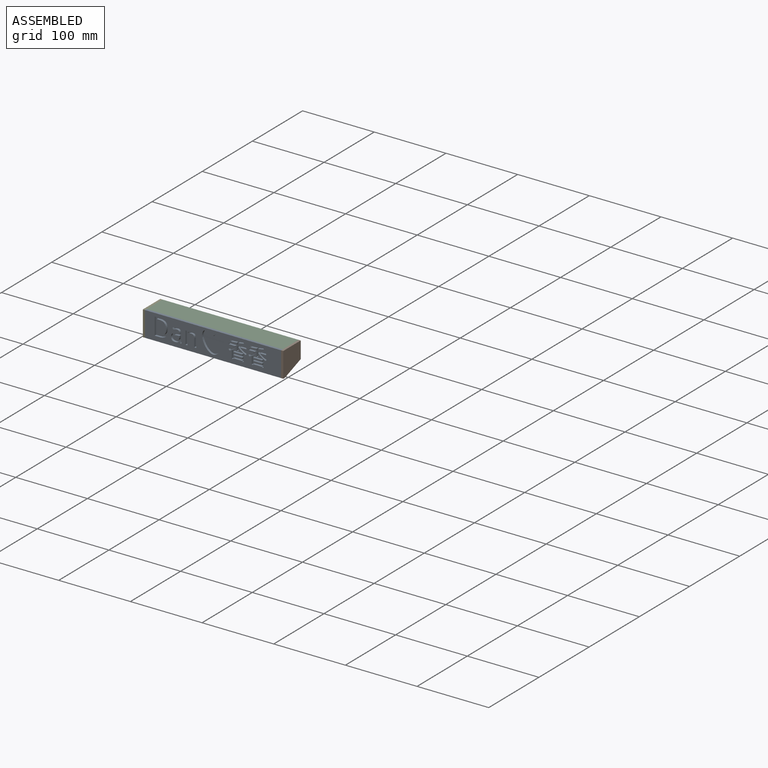
[diagram: assembled view]
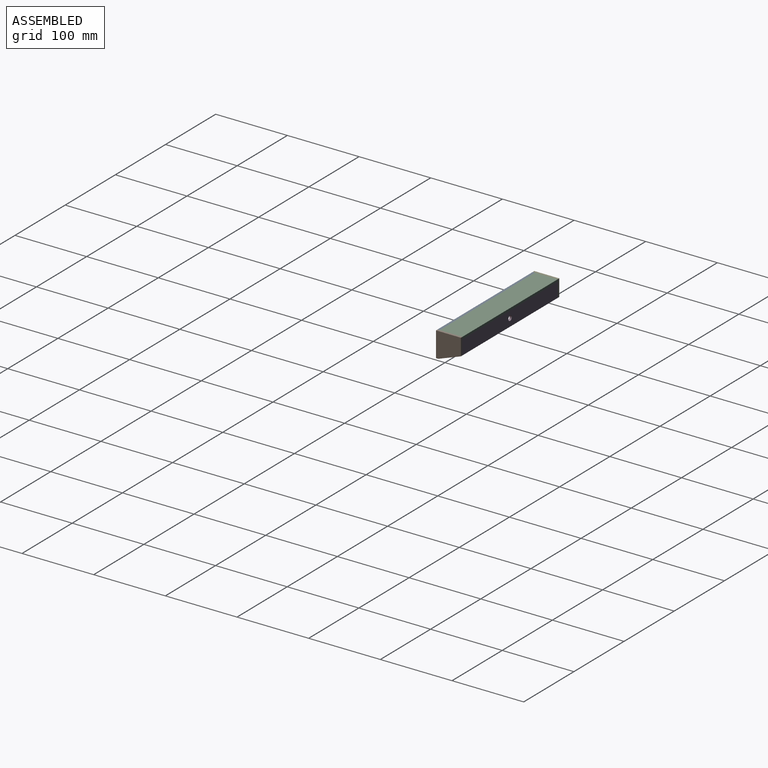
[diagram: assembled view, second angle]
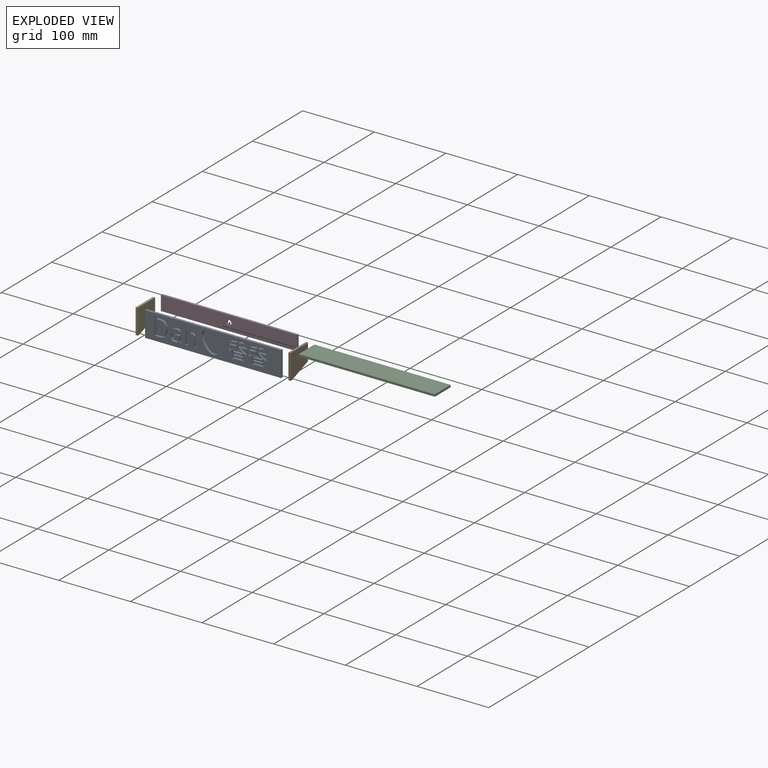
[diagram: exploded view]
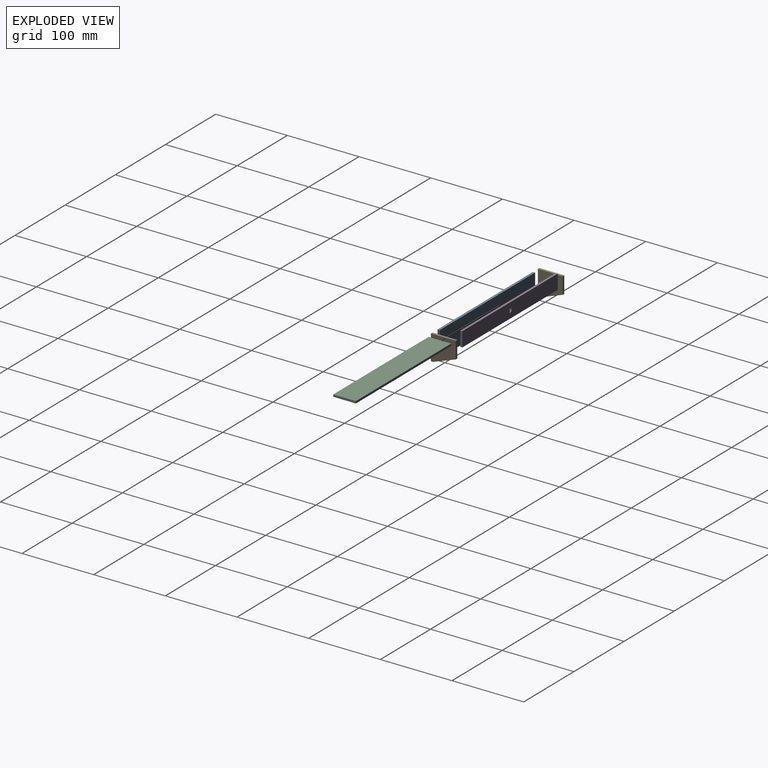
[diagram: exploded view, second angle]
ASSEMBLY  parts=5 mates=4
PART A: 155 faces, bbox 190x3.2x35 mm
  f0: plane 190x35mm, normal (0,-1,0), area 4672.6mm2, adj f1,f2,f3,f4,f6,f7,f8,f9
  f1: plane 190x3.2mm, normal (0,0,1), area 608mm2, adj f0,f2,f4,f5
  f2: plane 35x3.2mm, normal (-1,0,0), area 112mm2, adj f0,f1,f3,f5
  f3: plane 190x3.2mm, normal (0,0,-1), area 608mm2, adj f0,f2,f4,f5
  f4: plane 35x3.2mm, normal (1,0,0), area 112mm2, adj f0,f1,f3,f5
  f5: plane 190x35mm, normal (0,1,0), area 6650mm2, adj f1,f2,f3,f4
  f6: plane 8.95x3mm, normal (0,0,1), area 26.8mm2, adj f0,f7,f27,f28
  f7: plane 3x1.86mm, normal (-1,0,0), area 5.6mm2, adj f0,f6,f8,f28
  f8: plane 11.16x3mm, normal (0,0,-1), area 33.5mm2, adj f0,f7,f9,f28
  f9: plane 3.1x3mm, normal (-1,0,0), area 9.3mm2, adj f0,f8,f10,f28
  f10: extruded ~8.17x3mm, area 24.9mm2, adj f0,f9,f11,f28
  f11: plane 3x1.61mm, normal (-0.72,0,-0.69), area 6.7mm2, adj f0,f10,f12,f28
  f12: extruded ~17.59x3mm, area 53.2mm2, adj f0,f11,f13,f28
  f13: extruded ~3x1.75mm, area 5.5mm2, adj f0,f12,f14,f28
  f14: extruded ~8.34x3mm, area 25.1mm2, adj f0,f13,f15,f28
  f15: plane 3x2.88mm, normal (1,0,0), area 8.6mm2, adj f0,f14,f16,f28
  f16: plane 11.08x3mm, normal (0,0,-1), area 33.2mm2, adj f0,f15,f17,f28
  f17: plane 3x1.86mm, normal (1,0,0), area 5.6mm2, adj f0,f16,f18,f28
  f18: plane 8.9x3mm, normal (0,0,1), area 26.7mm2, adj f0,f17,f19,f28
  f19: extruded ~9.45x6.12mm, area 34.1mm2, adj f0,f18,f20,f28
  f20: extruded ~3x1.64mm, area 6.4mm2, adj f0,f19,f21,f28
  f21: extruded ~10.28x7.65mm, area 38.8mm2, adj f0,f20,f22,f28
  f22: plane 5.38x3mm, normal (1,0,0), area 16.1mm2, adj f0,f21,f23,f28
  f23: plane 3x2.11mm, normal (0,0,1), area 6.3mm2, adj f0,f22,f24,f28
  f24: plane 5.38x3mm, normal (-1,0,0), area 16.1mm2, adj f0,f23,f25,f28
  f25: extruded ~10.39x7.34mm, area 38.5mm2, adj f0,f24,f26,f28
  f26: extruded ~3x1.66mm, area 6.5mm2, adj f0,f25,f27,f28
  f27: extruded ~9.53x5.79mm, area 33.7mm2, adj f0,f6,f26,f28
  f28: plane 25.49x15.74mm, normal (0,-1,0), area 141.9mm2, adj f6,f7,f8,f9,f10,f11,f12,f13
  f29: plane 12.49x3mm, normal (0,0,1), area 37.5mm2, adj f30,f44,f45,f151
  f30: plane 3x2.49mm, normal (1,0,0), area 7.5mm2, adj f29,f31,f45,f151
  f31: plane 12.49x3mm, normal (0,0,-1), area 37.5mm2, adj f30,f44,f45,f151
  f32: plane 12.49x3mm, normal (0,0,-1), area 37.5mm2, adj f33,f42,f45,f46
  f33: plane 3x2.61mm, normal (-1,0,0), area 7.8mm2, adj f32,f34,f45,f46
  f34: plane 12.49x3mm, normal (0,0,1), area 37.5mm2, adj f33,f42,f45,f46
  f35: plane 10.86x3mm, normal (1,0,0), area 32.6mm2, adj f0,f36,f43,f45
  f36: plane 3x2.02mm, normal (0,0,1), area 6.1mm2, adj f0,f35,f37,f45
  f37: plane 3x0.97mm, normal (-1,0,0), area 2.9mm2, adj f0,f36,f38,f45
  f38: plane 12.49x3mm, normal (0,0,1), area 37.5mm2, adj f0,f37,f39,f45
  f39: plane 3x0.91mm, normal (1,0,0), area 2.7mm2, adj f0,f38,f40,f45
  f40: plane 3x2.11mm, normal (0,0,1), area 6.3mm2, adj f0,f39,f41,f45
  f41: plane 10.8x3mm, normal (-1,0,0), area 32.4mm2, adj f0,f40,f43,f45
  f42: plane 3x2.61mm, normal (1,0,0), area 7.8mm2, adj f32,f34,f45,f46
  f43: plane 16.62x3mm, normal (0,0,-1), area 49.9mm2, adj f0,f35,f41,f45
  f44: plane 3x2.49mm, normal (-1,0,0), area 7.5mm2, adj f29,f31,f45,f151
  f45: plane 16.62x10.86mm, normal (0,-1,0), area 104.6mm2, adj f29,f30,f31,f32,f33,f34,f35,f36
  f46: plane 12.49x2.61mm, normal (0,-1,0), area 32.5mm2, adj f32,f33,f34,f42
  f47: plane 12.49x3mm, normal (0,0,1), area 37.5mm2, adj f48,f62,f63,f152
  f48: plane 3x2.49mm, normal (1,0,0), area 7.5mm2, adj f47,f49,f63,f152
  f49: plane 12.49x3mm, normal (0,0,-1), area 37.5mm2, adj f48,f62,f63,f152
  f50: plane 12.49x3mm, normal (0,0,-1), area 37.5mm2, adj f51,f60,f63,f64
  f51: plane 3x2.61mm, normal (-1,0,0), area 7.8mm2, adj f50,f52,f63,f64
  f52: plane 12.49x3mm, normal (0,0,1), area 37.5mm2, adj f51,f60,f63,f64
  f53: plane 10.86x3mm, normal (1,0,0), area 32.6mm2, adj f0,f54,f61,f63
  f54: plane 3x2.02mm, normal (0,0,1), area 6.1mm2, adj f0,f53,f55,f63
  f55: plane 3x0.97mm, normal (-1,0,0), area 2.9mm2, adj f0,f54,f56,f63
  f56: plane 12.49x3mm, normal (0,0,1), area 37.5mm2, adj f0,f55,f57,f63
  f57: plane 3x0.91mm, normal (1,0,0), area 2.7mm2, adj f0,f56,f58,f63
  f58: plane 3x2.11mm, normal (0,0,1), area 6.3mm2, adj f0,f57,f59,f63
  f59: plane 10.8x3mm, normal (-1,0,0), area 32.4mm2, adj f0,f58,f61,f63
  f60: plane 3x2.61mm, normal (1,0,0), area 7.8mm2, adj f50,f52,f63,f64
  f61: plane 16.62x3mm, normal (0,0,-1), area 49.9mm2, adj f0,f53,f59,f63
  f62: plane 3x2.49mm, normal (-1,0,0), area 7.5mm2, adj f47,f49,f63,f152
  f63: plane 16.62x10.86mm, normal (0,-1,0), area 104.6mm2, adj f47,f48,f49,f50,f51,f52,f53,f54
  f64: plane 12.49x2.61mm, normal (0,-1,0), area 32.5mm2, adj f50,f51,f52,f60
  f65: extruded ~4.02x3mm, area 13.1mm2, adj f66,f91,f92,f153
  f66: extruded ~3x2.51mm, area 8.1mm2, adj f65,f67,f92,f153
  f67: extruded ~3x2.26mm, area 7.5mm2, adj f66,f68,f92,f153
  f68: extruded ~3x2.79mm, area 9.9mm2, adj f67,f69,f92,f153
  f69: extruded ~4.71x3mm, area 14.6mm2, adj f68,f70,f92,f153
  f70: plane 3x2.74mm, normal (-0.04,0,1), area 8.2mm2, adj f69,f71,f92,f153
  f71: plane 3x1.63mm, normal (1,0,0), area 4.9mm2, adj f70,f91,f92,f153
  f72: plane 3x2.58mm, normal (0.98,0,0.21), area 7.9mm2, adj f0,f73,f90,f92
  f73: plane 3x2.03mm, normal (0,0,1), area 6.1mm2, adj f0,f72,f74,f92
  f74: plane 12.34x3mm, normal (-1,0,0), area 37mm2, adj f0,f73,f75,f92
  f75: extruded ~4.6x3mm, area 15mm2, adj f0,f74,f76,f92
  f76: extruded ~4.79x3mm, area 15.3mm2, adj f0,f75,f77,f92
  f77: extruded ~3.2x3mm, area 9.7mm2, adj f0,f76,f78,f92
  f78: extruded ~3x2.93mm, area 9.4mm2, adj f0,f77,f79,f92
  f79: plane 3x2.1mm, normal (0.93,0,0.37), area 6.8mm2, adj f0,f78,f80,f92
  f80: extruded ~5.11x3mm, area 16mm2, adj f0,f79,f81,f92
  f81: extruded ~3x2.93mm, area 9.6mm2, adj f0,f80,f82,f92
  f82: extruded ~3.14x3mm, area 10mm2, adj f0,f81,f83,f92
  f83: plane 3x1.12mm, normal (1,0,0), area 3.4mm2, adj f0,f82,f84,f92
  f84: plane 3.07x3mm, normal (0.03,0,-1), area 9.2mm2, adj f0,f83,f85,f92
  f85: extruded ~8.76x5.74mm, area 35.3mm2, adj f0,f84,f86,f92
  f86: extruded ~3.94x3mm, area 13.1mm2, adj f0,f85,f87,f92
  f87: extruded ~4.21x3mm, area 13.6mm2, adj f0,f86,f88,f92
  f88: extruded ~3.36x3mm, area 10.3mm2, adj f0,f87,f89,f92
  f89: extruded ~3x2.69mm, area 10.7mm2, adj f0,f88,f90,f92
  f90: plane 3x0.13mm, normal (0,0,1), area 0.4mm2, adj f0,f72,f89,f92
  f91: extruded ~3.92x3mm, area 12.9mm2, adj f65,f71,f92,f153
  f92: plane 18.7x14.5mm, normal (0,-1,0), area 128mm2, adj f65,f66,f67,f68,f69,f70,f71,f72
  f93: extruded ~7.11x3mm, area 23.1mm2, adj f94,f106,f107,f154
  f94: extruded ~7.3x3mm, area 23.8mm2, adj f93,f95,f107,f154
  f95: extruded ~7.54x3mm, area 24.4mm2, adj f94,f96,f107,f154
  f96: plane 3.41x3mm, normal (0,0,-1), area 10.2mm2, adj f95,f97,f107,f154
  f97: plane 19.26x3mm, normal (-1,0,0), area 57.8mm2, adj f96,f98,f107,f154
  f98: plane 4.07x3mm, normal (0,0,1), area 12.2mm2, adj f97,f106,f107,f154
  f99: extruded ~9.13x3.24mm, area 29.9mm2, adj f0,f100,f105,f107
  f100: extruded ~8.71x3.12mm, area 28.5mm2, adj f0,f99,f101,f107
  f101: extruded ~8.74x3.12mm, area 28.6mm2, adj f0,f100,f102,f107
  f102: plane 7.39x3mm, normal (0,0,-1), area 22.2mm2, adj f0,f101,f103,f107
  f103: plane 24.11x3mm, normal (1,0,0), area 72.3mm2, adj f0,f102,f104,f107
  f104: plane 6.68x3mm, normal (0,0,1), area 20mm2, adj f0,f103,f105,f107
  f105: extruded ~9.33x3.16mm, area 30.3mm2, adj f0,f99,f104,f107
  f106: extruded ~7.04x3mm, area 22.9mm2, adj f93,f98,f107,f154
  f107: plane 24.11x19.25mm, normal (0,-1,0), area 183.9mm2, adj f93,f94,f95,f96,f97,f98,f99,f100
  f108: plane 11.69x3mm, normal (1,0,0), area 35.1mm2, adj f0,f109,f124,f125
  f109: plane 3x2.74mm, normal (0,0,1), area 8.2mm2, adj f0,f108,f110,f125
  f110: plane 11.79x3mm, normal (-1,0,0), area 35.4mm2, adj f0,f109,f111,f125
  f111: extruded ~5.04x3mm, area 16.4mm2, adj f0,f110,f112,f125
  f112: extruded ~4.92x3mm, area 15.9mm2, adj f0,f111,f113,f125
  f113: extruded ~3.38x3mm, area 10.5mm2, adj f0,f112,f114,f125
  f114: extruded ~3x2.36mm, area 9.5mm2, adj f0,f113,f115,f125
  f115: plane 3x0.13mm, normal (0,0,-1), area 0.4mm2, adj f0,f114,f116,f125
  f116: plane 3x2.48mm, normal (-0.98,0,-0.18), area 7.5mm2, adj f0,f115,f117,f125
  f117: plane 3x2.23mm, normal (0,0,-1), area 6.7mm2, adj f0,f116,f118,f125
  f118: plane 18.07x3mm, normal (1,0,0), area 54.2mm2, adj f0,f117,f119,f125
  f119: plane 3x2.74mm, normal (0,0,1), area 8.2mm2, adj f0,f118,f120,f125
  f120: plane 9.48x3mm, normal (-1,0,0), area 28.4mm2, adj f0,f119,f121,f125
  f121: extruded ~5.06x3mm, area 16mm2, adj f0,f120,f122,f125
  f122: extruded ~4.15x3mm, area 13.7mm2, adj f0,f121,f123,f125
  f123: extruded ~3.15x3mm, area 10.3mm2, adj f0,f122,f124,f125
  f124: extruded ~3.3x3mm, area 10.6mm2, adj f0,f108,f123,f125
  f125: plane 18.41x15.11mm, normal (0,-1,0), area 118.4mm2, adj f108,f109,f110,f111,f112,f113,f114,f115
  f126: plane 8.95x3mm, normal (0,0,1), area 26.8mm2, adj f0,f127,f147,f148
  f127: plane 3x1.86mm, normal (-1,0,0), area 5.6mm2, adj f0,f126,f128,f148
  f128: plane 11.16x3mm, normal (0,0,-1), area 33.5mm2, adj f0,f127,f129,f148
  f129: plane 3.1x3mm, normal (-1,0,0), area 9.3mm2, adj f0,f128,f130,f148
  f130: extruded ~8.17x3mm, area 24.9mm2, adj f0,f129,f131,f148
  f131: plane 3x1.61mm, normal (-0.72,0,-0.69), area 6.7mm2, adj f0,f130,f132,f148
  f132: extruded ~17.59x3mm, area 53.2mm2, adj f0,f131,f133,f148
  f133: extruded ~3x1.75mm, area 5.5mm2, adj f0,f132,f134,f148
  f134: extruded ~8.34x3mm, area 25.1mm2, adj f0,f133,f135,f148
  f135: plane 3x2.88mm, normal (1,0,0), area 8.6mm2, adj f0,f134,f136,f148
  f136: plane 11.08x3mm, normal (0,0,-1), area 33.2mm2, adj f0,f135,f137,f148
  f137: plane 3x1.86mm, normal (1,0,0), area 5.6mm2, adj f0,f136,f138,f148
  f138: plane 8.9x3mm, normal (0,0,1), area 26.7mm2, adj f0,f137,f139,f148
  f139: extruded ~9.45x6.12mm, area 34.1mm2, adj f0,f138,f140,f148
  f140: extruded ~3x1.64mm, area 6.4mm2, adj f0,f139,f141,f148
  f141: extruded ~10.28x7.65mm, area 38.8mm2, adj f0,f140,f142,f148
  f142: plane 5.38x3mm, normal (1,0,0), area 16.1mm2, adj f0,f141,f143,f148
  f143: plane 3x2.11mm, normal (0,0,1), area 6.3mm2, adj f0,f142,f144,f148
  f144: plane 5.38x3mm, normal (-1,0,0), area 16.1mm2, adj f0,f143,f145,f148
  f145: extruded ~10.39x7.34mm, area 38.5mm2, adj f0,f144,f146,f148
  f146: extruded ~3x1.66mm, area 6.5mm2, adj f0,f145,f147,f148
  f147: extruded ~9.53x5.79mm, area 33.7mm2, adj f0,f126,f146,f148
  f148: plane 25.49x15.74mm, normal (0,-1,0), area 141.9mm2, adj f126,f127,f128,f129,f130,f131,f132,f133
  f149: extruded ~30.56x28.31mm, area 300mm2, adj f0,f150
  f150: plane 33.03x29.55mm, normal (0,-1,0), area 648.9mm2, adj f149
  f151: plane 12.49x2.49mm, normal (0,-1,0), area 31.1mm2, adj f29,f30,f31,f44
  f152: plane 12.49x2.49mm, normal (0,-1,0), area 31.1mm2, adj f47,f48,f49,f62
  f153: plane 8.89x6.96mm, normal (0,-1,0), area 49.8mm2, adj f65,f66,f67,f68,f69,f70,f71,f91
  f154: plane 19.26x13.48mm, normal (0,-1,0), area 228mm2, adj f93,f94,f95,f96,f97,f98,f106
PART B: 7 faces, bbox 3x34.7x35 mm
  f0: plane 34.74x3mm, normal (0,0,1), area 104.2mm2, adj f1,f4,f5,f6
  f1: plane 35x3mm, normal (0,-1,0), area 105mm2, adj f0,f2,f5,f6
  f2: plane 3.2x3mm, normal (0,0,-1), area 9.6mm2, adj f1,f3,f5,f6
  f3: plane 31.54x11.53mm, normal (0,0.34,-0.94), area 100.8mm2, adj f2,f4,f5,f6
  f4: plane 23.47x3mm, normal (0,1,0), area 70.4mm2, adj f0,f3,f5,f6
  f5: plane 35x34.74mm, normal (1,0,0), area 1034.2mm2, adj f0,f1,f2,f3,f4
  f6: plane 35x34.74mm, normal (-1,0,0), area 1034.2mm2, adj f0,f1,f2,f3,f4
PART C: 6 faces, bbox 190x31.5x3 mm
  f0: plane 190x3mm, normal (0,-1,0), area 570mm2, adj f1,f3,f4,f5
  f1: plane 31.54x3mm, normal (1,0,0), area 94.6mm2, adj f0,f2,f4,f5
  f2: plane 190x3mm, normal (0,1,0), area 570mm2, adj f1,f3,f4,f5
  f3: plane 31.54x3mm, normal (-1,0,0), area 94.6mm2, adj f0,f2,f4,f5
  f4: plane 190x31.54mm, normal (0,0,-1), area 5993.5mm2, adj f0,f1,f2,f3
  f5: plane 190x31.54mm, normal (0,0,1), area 5993.5mm2, adj f0,f1,f2,f3
PART D: 7 faces, bbox 190x3x20.5 mm
  f0: plane 190x3mm, normal (0,0,1), area 570mm2, adj f1,f4,f5,f6
  f1: plane 20.47x3mm, normal (1,0,0), area 61.4mm2, adj f0,f2,f5,f6
  f2: plane 190x3mm, normal (0,0,-1), area 570mm2, adj f1,f4,f5,f6
  f3: cylinder r=3.33mm len=6.66mm, axis (0,1,0), area 62.8mm2, adj f5,f6
  f4: plane 20.47x3mm, normal (-1,0,0), area 61.4mm2, adj f0,f2,f5,f6
  f5: plane 190x20.47mm, normal (0,-1,0), area 3853.9mm2, adj f0,f1,f2,f3,f4
  f6: plane 190x20.47mm, normal (0,1,0), area 3853.9mm2, adj f0,f1,f2,f3,f4
PART E: same geometry as B
PLACE A t=(3.33,-11.57,3.9)mm fixed
PLACE B t=(3.33,-11.57,3.9)mm
PLACE C t=(3.33,-11.57,3.9)mm
PLACE D t=(3.33,-11.57,3.9)mm
PLACE E t=(-189.67,-11.57,3.9)mm
MATE fastened C.f4 <-> D.f0  axis (0,0,-1) through (-91.67,23.17,18.4)mm
MATE fastened E.f5 <-> A.f2  axis (1,0,0) through (-91.67,-11.57,21.4)mm
MATE fastened B.f6 <-> A.f4  axis (-1,0,0) through (98.33,-11.57,21.4)mm
MATE fastened B.f6 <-> C.f1  axis (-1,0,0) through (98.33,23.17,21.4)mm
